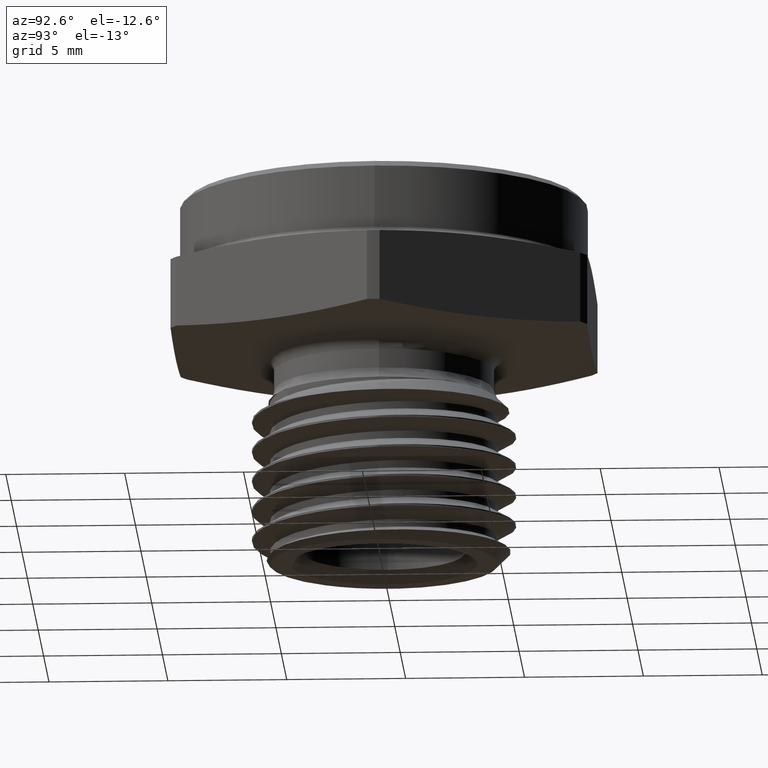
[diagram: clean part render]
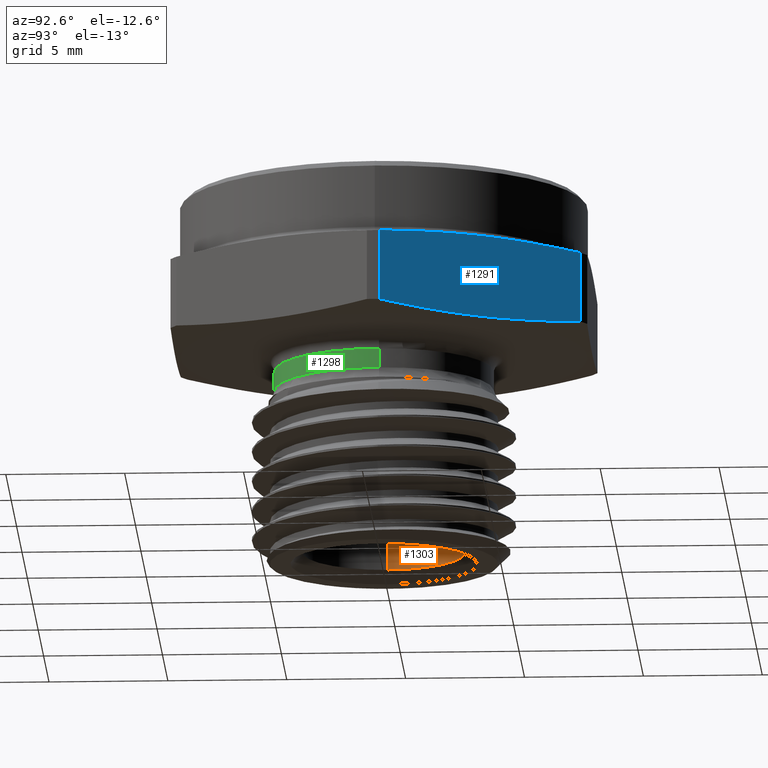
[diagram: same view with three faces highlighted in distinct colors, each labeled with its STEP entity id]
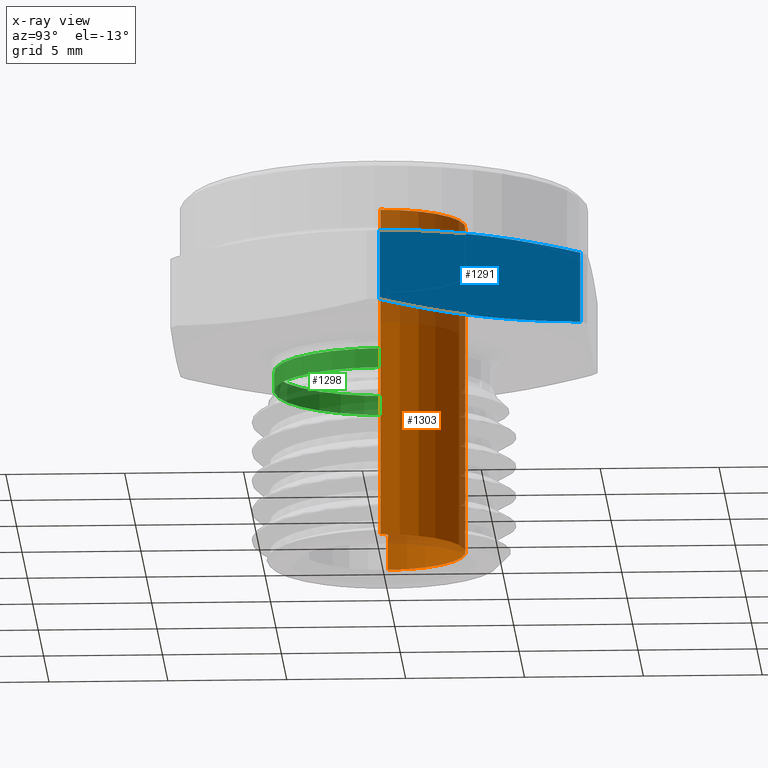
[diagram: x-ray of the same camera — body ghosted, the three highlighted faces saturated]
A machine part, auxiliary view with three faces highlighted in distinct colors.
The next image is the same camera in x-ray (body ghosted, the three faces saturated) — at least one of them is partly hidden behind the body in this view.
Their STEP definitions:

[orange] entity #1303 — the highlighted cylindrical surface (partial cylindrical patch) has radius 3.429 mm, axis along (-0, -0, 1).
#187 = EDGE_CURVE ( 'NONE', #1661, #1669, #2778, .T. ) ;
#188 = EDGE_CURVE ( 'NONE', #1650, #356, #2776, .T. ) ;
#219 = EDGE_CURVE ( 'NONE', #1650, #1661, #2802, .T. ) ;
#222 = EDGE_CURVE ( 'NONE', #356, #1669, #2814, .T. ) ;
#356 = VERTEX_POINT ( 'NONE', #1021 ) ;
#399 = AXIS2_PLACEMENT_3D ( 'NONE', #1188, #1187, #1186 ) ;
#400 = AXIS2_PLACEMENT_3D ( 'NONE', #1183, #1182, #1181 ) ;
#480 = AXIS2_PLACEMENT_3D ( 'NONE', #1775, #1771, #1773 ) ;
#760 = CARTESIAN_POINT ( 'NONE',  ( -0.1350000000000000100, 1.653273178848926900E-017, 0.3947604000970203500 ) ) ;
#764 = DIRECTION ( 'NONE',  ( -0.0000000000000000000, -0.0000000000000000000, 1.000000000000000000 ) ) ;
#768 = DIRECTION ( 'NONE',  ( -0.0000000000000000000, -0.0000000000000000000, 1.000000000000000000 ) ) ;
#769 = CARTESIAN_POINT ( 'NONE',  ( 0.1350000000000000100, 0.0000000000000000000, 0.3947604000970203500 ) ) ;
#1021 = CARTESIAN_POINT ( 'NONE',  ( -0.1350000000000000100, 1.653273178848926900E-017, -0.3299999999999999600 ) ) ;
#1181 = DIRECTION ( 'NONE',  ( 1.000000000000000000, 0.0000000000000000000, 0.0000000000000000000 ) ) ;
#1182 = DIRECTION ( 'NONE',  ( -0.0000000000000000000, -0.0000000000000000000, 1.000000000000000000 ) ) ;
#1183 = CARTESIAN_POINT ( 'NONE',  ( 0.0000000000000000000, 0.0000000000000000000, -0.3299999999999999600 ) ) ;
#1186 = DIRECTION ( 'NONE',  ( 1.000000000000000000, 0.0000000000000000000, 0.0000000000000000000 ) ) ;
#1187 = DIRECTION ( 'NONE',  ( -0.0000000000000000000, -0.0000000000000000000, 1.000000000000000000 ) ) ;
#1188 = CARTESIAN_POINT ( 'NONE',  ( 0.0000000000000000000, 0.0000000000000000000, 0.2200000000000000600 ) ) ;
#1303 = ADVANCED_FACE ( 'NONE', ( #2933 ), #2937, .F. ) ;
#1526 = CARTESIAN_POINT ( 'NONE',  ( 0.1350000000000000100, 0.0000000000000000000, -0.3299999999999999600 ) ) ;
#1550 = CARTESIAN_POINT ( 'NONE',  ( 0.1350000000000000100, 0.0000000000000000000, 0.2200000000000000600 ) ) ;
#1558 = CARTESIAN_POINT ( 'NONE',  ( -0.1350000000000000100, 1.653273178848926900E-017, 0.2200000000000000600 ) ) ;
#1650 = VERTEX_POINT ( 'NONE', #1526 ) ;
#1661 = VERTEX_POINT ( 'NONE', #1550 ) ;
#1669 = VERTEX_POINT ( 'NONE', #1558 ) ;
#1771 = DIRECTION ( 'NONE',  ( -0.0000000000000000000, -0.0000000000000000000, 1.000000000000000000 ) ) ;
#1773 = DIRECTION ( 'NONE',  ( 1.000000000000000000, 0.0000000000000000000, 0.0000000000000000000 ) ) ;
#1775 = CARTESIAN_POINT ( 'NONE',  ( 0.0000000000000000000, 0.0000000000000000000, 0.3947604000970203500 ) ) ;
#2644 = ORIENTED_EDGE ( 'NONE', *, *, #222, .F. ) ;
#2645 = ORIENTED_EDGE ( 'NONE', *, *, #188, .F. ) ;
#2646 = ORIENTED_EDGE ( 'NONE', *, *, #219, .T. ) ;
#2647 = ORIENTED_EDGE ( 'NONE', *, *, #187, .T. ) ;
#2668 = EDGE_LOOP ( 'NONE', ( #2644, #2645, #2646, #2647 ) ) ;
#2776 = CIRCLE ( 'NONE', #400, 0.1350000000000000100 ) ;
#2778 = CIRCLE ( 'NONE', #399, 0.1350000000000000100 ) ;
#2802 = LINE ( 'NONE', #769, #2811 ) ;
#2811 = VECTOR ( 'NONE', #764, 39.37007874015748100 ) ;
#2814 = LINE ( 'NONE', #760, #2816 ) ;
#2816 = VECTOR ( 'NONE', #768, 39.37007874015748100 ) ;
#2933 = FACE_OUTER_BOUND ( 'NONE', #2668, .T. ) ;
#2937 = CYLINDRICAL_SURFACE ( 'NONE', #480, 0.1350000000000000100 ) ;

[blue] entity #1291 — the highlighted planar face has unit normal (-0.866, -0.5, 0).
#112 = B_SPLINE_CURVE_WITH_KNOTS ( 'NONE', 3,
 ( #940, #935, #936, #941, #942 ),
 .UNSPECIFIED., .F., .F.,
 ( 4, 1, 4 ),
 ( 1.975061655751686100E-006, 0.004749162338215328500, 0.009496349614774904000 ),
 .UNSPECIFIED. ) ;
#113 = B_SPLINE_CURVE_WITH_KNOTS ( 'NONE', 3,
 ( #958, #953, #952, #959, #960 ),
 .UNSPECIFIED., .F., .F.,
 ( 4, 1, 4 ),
 ( 1.975061656132253800E-006, 0.004749162338215708400, 0.009496349614775285600 ),
 .UNSPECIFIED. ) ;
#159 = EDGE_CURVE ( 'NONE', #2334, #1664, #2751, .T. ) ;
#164 = EDGE_CURVE ( 'NONE', #2328, #357, #2757, .T. ) ;
#252 = EDGE_CURVE ( 'NONE', #1664, #2328, #112, .T. ) ;
#258 = EDGE_CURVE ( 'NONE', #357, #2334, #113, .T. ) ;
#337 = ORIENTED_EDGE ( 'NONE', *, *, #164, .F. ) ;
#338 = ORIENTED_EDGE ( 'NONE', *, *, #252, .F. ) ;
#339 = ORIENTED_EDGE ( 'NONE', *, *, #159, .F. ) ;
#340 = ORIENTED_EDGE ( 'NONE', *, *, #258, .F. ) ;
#357 = VERTEX_POINT ( 'NONE', #1022 ) ;
#467 = AXIS2_PLACEMENT_3D ( 'NONE', #1732, #1737, #1738 ) ;
#935 = CARTESIAN_POINT ( 'NONE',  ( 0.3610778099297727900, 0.06459488771593563400, 0.1346442159933938000 ) ) ;
#936 = CARTESIAN_POINT ( 'NONE',  ( 0.2987787643056312700, 0.1725000000000001500, 0.1421674355815558100 ) ) ;
#940 = CARTESIAN_POINT ( 'NONE',  ( 0.3922273327418435200, 0.01064233157390341800, 0.1283366631458886800 ) ) ;
#941 = CARTESIAN_POINT ( 'NONE',  ( 0.2364797186814898700, 0.2804051122840646200, 0.1346442159933938000 ) ) ;
#942 = CARTESIAN_POINT ( 'NONE',  ( 0.2053301958694191700, 0.3343576684260967700, 0.1283366631458887100 ) ) ;
#952 = CARTESIAN_POINT ( 'NONE',  ( 0.2987787643056312200, 0.1725000000000002400, -0.002167435581555892100 ) ) ;
#953 = CARTESIAN_POINT ( 'NONE',  ( 0.2364797186814898400, 0.2804051122840645100, 0.005355784006606439100 ) ) ;
#958 = CARTESIAN_POINT ( 'NONE',  ( 0.2053301958694191700, 0.3343576684260967700, 0.01166333685411174600 ) ) ;
#959 = CARTESIAN_POINT ( 'NONE',  ( 0.3610778099297729000, 0.06459488771593560600, 0.005355784006606423500 ) ) ;
#960 = CARTESIAN_POINT ( 'NONE',  ( 0.3922273327418435700, 0.01064233157390342100, 0.01166333685411172200 ) ) ;
#1022 = CARTESIAN_POINT ( 'NONE',  ( 0.2053301958694191700, 0.3343576684260967700, 0.01166333685411174600 ) ) ;
#1291 = ADVANCED_FACE ( 'NONE', ( #2913 ), #1731, .F. ) ;
#1553 = CARTESIAN_POINT ( 'NONE',  ( 0.3922273327418435200, 0.01064233157390341800, 0.1283366631458886800 ) ) ;
#1571 = CARTESIAN_POINT ( 'NONE',  ( 0.2053301958694191700, 0.3343576684260967700, 0.1283366631458887100 ) ) ;
#1577 = CARTESIAN_POINT ( 'NONE',  ( 0.3922273327418435700, 0.01064233157390342100, 0.01166333685411172200 ) ) ;
#1664 = VERTEX_POINT ( 'NONE', #1553 ) ;
#1731 = PLANE ( 'NONE',  #467 ) ;
#1732 = CARTESIAN_POINT ( 'NONE',  ( 0.3983716857408415900, 4.899328730944503100E-016, 0.1400000000000000100 ) ) ;
#1737 = DIRECTION ( 'NONE',  ( -0.8660254037844386000, -0.5000000000000003300, 0.0000000000000000000 ) ) ;
#1738 = DIRECTION ( 'NONE',  ( 0.5000000000000002200, -0.8660254037844384900, 0.0000000000000000000 ) ) ;
#2328 = VERTEX_POINT ( 'NONE', #1571 ) ;
#2334 = VERTEX_POINT ( 'NONE', #1577 ) ;
#2380 = DIRECTION ( 'NONE',  ( -1.224646799147349800E-016, -0.0000000000000000000, -1.000000000000000000 ) ) ;
#2381 = CARTESIAN_POINT ( 'NONE',  ( 0.2053301958694192000, 0.3343576684260968800, 1.144414902203093300E-017 ) ) ;
#2390 = CARTESIAN_POINT ( 'NONE',  ( 0.3922273327418435700, 0.01064233157390342100, -1.144414902203093300E-017 ) ) ;
#2406 = DIRECTION ( 'NONE',  ( 1.224646799147349800E-016, 0.0000000000000000000, 1.000000000000000000 ) ) ;
#2679 = EDGE_LOOP ( 'NONE', ( #337, #338, #339, #340 ) ) ;
#2751 = LINE ( 'NONE', #2390, #2752 ) ;
#2752 = VECTOR ( 'NONE', #2406, 39.37007874015748100 ) ;
#2757 = LINE ( 'NONE', #2381, #2759 ) ;
#2759 = VECTOR ( 'NONE', #2380, 39.37007874015748100 ) ;
#2913 = FACE_OUTER_BOUND ( 'NONE', #2679, .T. ) ;

[green] entity #1298 — the highlighted cylindrical surface (partial cylindrical patch) has radius 4.6228 mm, axis along (-0, -0, 1).
#204 = EDGE_CURVE ( 'NONE', #378, #369, #2793, .T. ) ;
#246 = EDGE_CURVE ( 'NONE', #348, #2322, #2841, .T. ) ;
#247 = EDGE_CURVE ( 'NONE', #2322, #369, #2840, .T. ) ;
#249 = EDGE_CURVE ( 'NONE', #348, #378, #2845, .T. ) ;
#295 = ORIENTED_EDGE ( 'NONE', *, *, #249, .F. ) ;
#296 = ORIENTED_EDGE ( 'NONE', *, *, #246, .T. ) ;
#297 = ORIENTED_EDGE ( 'NONE', *, *, #247, .T. ) ;
#348 = VERTEX_POINT ( 'NONE', #1015 ) ;
#369 = VERTEX_POINT ( 'NONE', #1032 ) ;
#378 = VERTEX_POINT ( 'NONE', #1041 ) ;
#407 = AXIS2_PLACEMENT_3D ( 'NONE', #671, #672, #673 ) ;
#428 = AXIS2_PLACEMENT_3D ( 'NONE', #919, #920, #921 ) ;
#474 = AXIS2_PLACEMENT_3D ( 'NONE', #1757, #1758, #1755 ) ;
#671 = CARTESIAN_POINT ( 'NONE',  ( 0.0000000000000000000, 0.0000000000000000000, -0.02500000000000005000 ) ) ;
#672 = DIRECTION ( 'NONE',  ( -0.0000000000000000000, -0.0000000000000000000, 1.000000000000000000 ) ) ;
#673 = DIRECTION ( 'NONE',  ( 1.000000000000000000, 0.0000000000000000000, 0.0000000000000000000 ) ) ;
#909 = CARTESIAN_POINT ( 'NONE',  ( -0.1820000000000000000, 2.228857174448182800E-017, 0.0000000000000000000 ) ) ;
#913 = DIRECTION ( 'NONE',  ( -0.0000000000000000000, -0.0000000000000000000, 1.000000000000000000 ) ) ;
#917 = DIRECTION ( 'NONE',  ( -0.0000000000000000000, -0.0000000000000000000, 1.000000000000000000 ) ) ;
#918 = CARTESIAN_POINT ( 'NONE',  ( 0.1820000000000000000, 0.0000000000000000000, 0.0000000000000000000 ) ) ;
#919 = CARTESIAN_POINT ( 'NONE',  ( 0.0000000000000000000, 0.0000000000000000000, -0.05732233047033625400 ) ) ;
#920 = DIRECTION ( 'NONE',  ( -0.0000000000000000000, -0.0000000000000000000, 1.000000000000000000 ) ) ;
#921 = DIRECTION ( 'NONE',  ( 1.000000000000000000, 0.0000000000000000000, 0.0000000000000000000 ) ) ;
#1015 = CARTESIAN_POINT ( 'NONE',  ( -0.1820000000000000000, 2.273693517312165900E-017, -0.05732233047033625400 ) ) ;
#1032 = CARTESIAN_POINT ( 'NONE',  ( 0.1820000000000000000, 0.0000000000000000000, -0.02500000000000005000 ) ) ;
#1041 = CARTESIAN_POINT ( 'NONE',  ( -0.1820000000000000000, 2.228857174448182800E-017, -0.02500000000000005000 ) ) ;
#1298 = ADVANCED_FACE ( 'NONE', ( #2922 ), #2929, .T. ) ;
#1566 = CARTESIAN_POINT ( 'NONE',  ( 0.1820000000000000000, 0.0000000000000000000, -0.05732233047033625400 ) ) ;
#1755 = DIRECTION ( 'NONE',  ( 1.000000000000000000, 0.0000000000000000000, 0.0000000000000000000 ) ) ;
#1757 = CARTESIAN_POINT ( 'NONE',  ( 0.0000000000000000000, 0.0000000000000000000, 0.0000000000000000000 ) ) ;
#1758 = DIRECTION ( 'NONE',  ( -0.0000000000000000000, -0.0000000000000000000, 1.000000000000000000 ) ) ;
#2322 = VERTEX_POINT ( 'NONE', #1566 ) ;
#2626 = ORIENTED_EDGE ( 'NONE', *, *, #204, .F. ) ;
#2671 = EDGE_LOOP ( 'NONE', ( #295, #296, #297, #2626 ) ) ;
#2793 = CIRCLE ( 'NONE', #407, 0.1820000000000000000 ) ;
#2840 = LINE ( 'NONE', #918, #2844 ) ;
#2841 = CIRCLE ( 'NONE', #428, 0.1820000000000000000 ) ;
#2844 = VECTOR ( 'NONE', #913, 39.37007874015748100 ) ;
#2845 = LINE ( 'NONE', #909, #2847 ) ;
#2847 = VECTOR ( 'NONE', #917, 39.37007874015748100 ) ;
#2922 = FACE_OUTER_BOUND ( 'NONE', #2671, .T. ) ;
#2929 = CYLINDRICAL_SURFACE ( 'NONE', #474, 0.1820000000000000000 ) ;